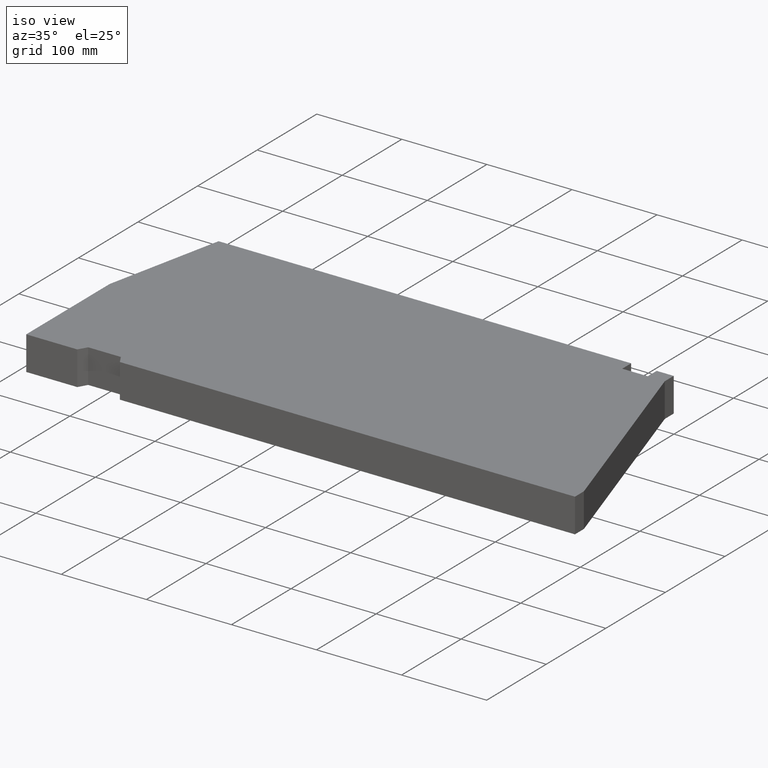
[diagram: clean part render]
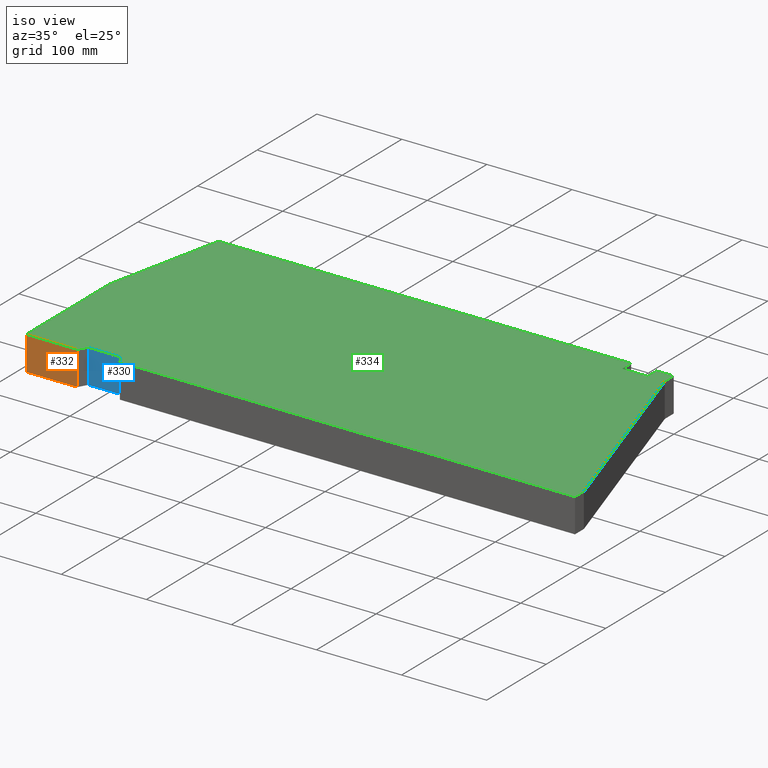
[diagram: same view with three faces highlighted in distinct colors, each labeled with its STEP entity id]
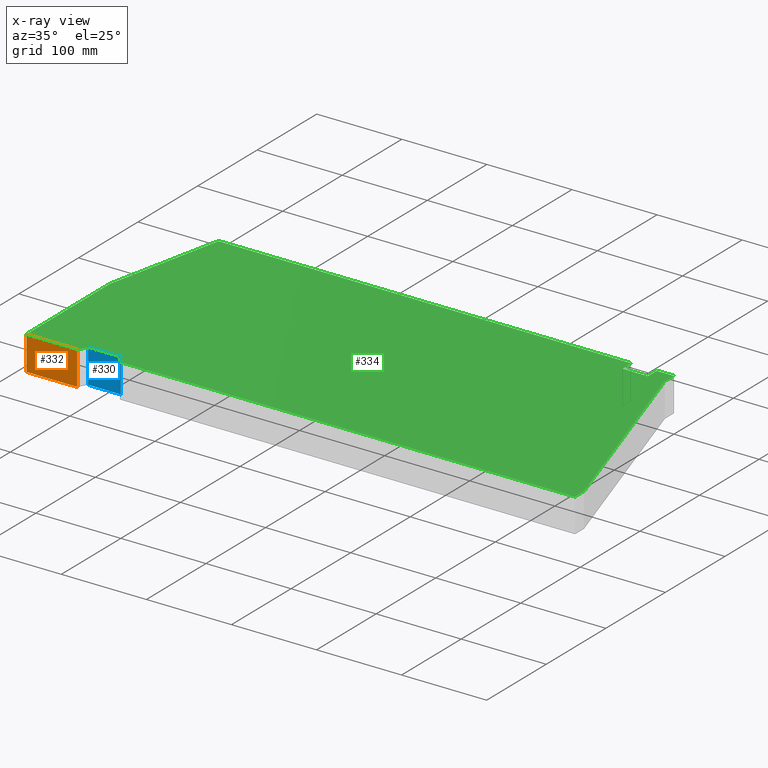
[diagram: x-ray of the same camera — body ghosted, the three highlighted faces saturated]
A machine part, iso view with three faces highlighted in distinct colors.
The next image is the same camera in x-ray (body ghosted, the three faces saturated) — at least one of them is partly hidden behind the body in this view.
Their STEP definitions:

[orange] entity #332 — the highlighted planar face has unit normal (0, -1, 0).
#26=FACE_OUTER_BOUND($,#43,.T.);
#43=EDGE_LOOP($,(#264,#265,#266,#267));
#86=LINE($,#518,#131);
#87=LINE($,#521,#132);
#88=LINE($,#523,#133);
#89=LINE($,#524,#134);
#131=VECTOR($,#423,40.);
#132=VECTOR($,#426,60.0000000000001);
#133=VECTOR($,#427,60.0000000000001);
#134=VECTOR($,#428,40.);
#163=VERTEX_POINT($,#514);
#164=VERTEX_POINT($,#516);
#165=VERTEX_POINT($,#520);
#166=VERTEX_POINT($,#522);
#206=EDGE_CURVE($,#163,#164,#86,.T.);
#207=EDGE_CURVE($,#163,#165,#87,.T.);
#208=EDGE_CURVE($,#166,#164,#88,.T.);
#209=EDGE_CURVE($,#165,#166,#89,.T.);
#264=ORIENTED_EDGE($,*,*,#207,.F.);
#265=ORIENTED_EDGE($,*,*,#206,.T.);
#266=ORIENTED_EDGE($,*,*,#208,.F.);
#267=ORIENTED_EDGE($,*,*,#209,.F.);
#315=PLANE($,#352);
#332=ADVANCED_FACE($,(#26),#315,.T.);
#352=AXIS2_PLACEMENT_3D($,#519,#424,#425);
#423=DIRECTION($,(0.,0.,1.));
#424=DIRECTION('center_axis',(0.,-1.,0.));
#425=DIRECTION('ref_axis',(1.,0.,0.));
#426=DIRECTION($,(-1.,0.,0.));
#427=DIRECTION($,(1.,0.,0.));
#428=DIRECTION($,(0.,0.,1.));
#514=CARTESIAN_POINT('',(-119.031144331396,-160.346020761246,0.));
#516=CARTESIAN_POINT('',(-119.031144331396,-160.346020761246,40.));
#518=CARTESIAN_POINT($,(-119.031144331396,-160.346020761246,0.));
#519=CARTESIAN_POINT('Origin',(-179.031144331396,-160.346020761246,0.));
#520=CARTESIAN_POINT('',(-179.031144331396,-160.346020761246,0.));
#521=CARTESIAN_POINT($,(-119.031144331396,-160.346020761246,0.));
#522=CARTESIAN_POINT('',(-179.031144331396,-160.346020761246,40.));
#523=CARTESIAN_POINT($,(-119.031144331396,-160.346020761246,40.));
#524=CARTESIAN_POINT($,(-179.031144331396,-160.346020761246,0.));

[blue] entity #330 — the highlighted planar face has unit normal (0, -1, 0).
#24=FACE_OUTER_BOUND($,#41,.T.);
#41=EDGE_LOOP($,(#256,#257,#258,#259));
#80=LINE($,#506,#125);
#81=LINE($,#509,#126);
#82=LINE($,#511,#127);
#83=LINE($,#512,#128);
#125=VECTOR($,#413,40.);
#126=VECTOR($,#416,38.4529946162075);
#127=VECTOR($,#417,38.4529946162075);
#128=VECTOR($,#418,40.);
#159=VERTEX_POINT($,#502);
#160=VERTEX_POINT($,#504);
#161=VERTEX_POINT($,#508);
#162=VERTEX_POINT($,#510);
#200=EDGE_CURVE($,#159,#160,#80,.T.);
#201=EDGE_CURVE($,#159,#161,#81,.T.);
#202=EDGE_CURVE($,#162,#160,#82,.T.);
#203=EDGE_CURVE($,#161,#162,#83,.T.);
#256=ORIENTED_EDGE($,*,*,#201,.F.);
#257=ORIENTED_EDGE($,*,*,#200,.T.);
#258=ORIENTED_EDGE($,*,*,#202,.F.);
#259=ORIENTED_EDGE($,*,*,#203,.F.);
#313=PLANE($,#350);
#330=ADVANCED_FACE($,(#24),#313,.T.);
#350=AXIS2_PLACEMENT_3D($,#507,#414,#415);
#413=DIRECTION($,(0.,0.,1.));
#414=DIRECTION('center_axis',(0.,-1.,0.));
#415=DIRECTION('ref_axis',(1.,0.,0.));
#416=DIRECTION($,(-1.,0.,0.));
#417=DIRECTION($,(1.,0.,0.));
#418=DIRECTION($,(0.,0.,1.));
#502=CARTESIAN_POINT('',(-74.8046470232926,-150.346020761246,0.));
#504=CARTESIAN_POINT('',(-74.8046470232926,-150.346020761246,40.));
#506=CARTESIAN_POINT($,(-74.8046470232926,-150.346020761246,0.));
#507=CARTESIAN_POINT('Origin',(-113.2576416395,-150.346020761246,0.));
#508=CARTESIAN_POINT('',(-113.2576416395,-150.346020761246,0.));
#509=CARTESIAN_POINT($,(-74.8046470232926,-150.346020761246,0.));
#510=CARTESIAN_POINT('',(-113.2576416395,-150.346020761246,40.));
#511=CARTESIAN_POINT($,(-74.8046470232926,-150.346020761246,40.));
#512=CARTESIAN_POINT($,(-113.2576416395,-150.346020761246,0.));

[green] entity #334 — the highlighted planar face has unit normal (0, 0, 1).
#28=FACE_OUTER_BOUND($,#45,.T.);
#45=EDGE_LOOP($,(#272,#273,#274,#275,#276,#277,#278,#279,#280,#281,#282,
#283,#284,#285,#286));
#49=LINE($,#445,#94);
#52=LINE($,#451,#97);
#55=LINE($,#457,#100);
#58=LINE($,#463,#103);
#61=LINE($,#469,#106);
#64=LINE($,#475,#109);
#67=LINE($,#481,#112);
#70=LINE($,#487,#115);
#73=LINE($,#493,#118);
#76=LINE($,#499,#121);
#79=LINE($,#505,#124);
#82=LINE($,#511,#127);
#85=LINE($,#517,#130);
#88=LINE($,#523,#133);
#91=LINE($,#527,#136);
#94=VECTOR($,#362,143.178210632764);
#97=VECTOR($,#367,485.);
#100=VECTOR($,#372,15.);
#103=VECTOR($,#377,30.);
#106=VECTOR($,#382,15.);
#109=VECTOR($,#387,20.);
#112=VECTOR($,#392,15.);
#115=VECTOR($,#397,262.488094968134);
#118=VECTOR($,#402,14.9999999999999);
#121=VECTOR($,#407,535.);
#124=VECTOR($,#412,11.5470053837925);
#127=VECTOR($,#417,38.4529946162075);
#130=VECTOR($,#422,11.5470053837925);
#133=VECTOR($,#427,60.0000000000001);
#136=VECTOR($,#432,140.);
#139=VERTEX_POINT($,#442);
#140=VERTEX_POINT($,#444);
#142=VERTEX_POINT($,#450);
#144=VERTEX_POINT($,#456);
#146=VERTEX_POINT($,#462);
#148=VERTEX_POINT($,#468);
#150=VERTEX_POINT($,#474);
#152=VERTEX_POINT($,#480);
#154=VERTEX_POINT($,#486);
#156=VERTEX_POINT($,#492);
#158=VERTEX_POINT($,#498);
#160=VERTEX_POINT($,#504);
#162=VERTEX_POINT($,#510);
#164=VERTEX_POINT($,#516);
#166=VERTEX_POINT($,#522);
#169=EDGE_CURVE($,#140,#139,#49,.T.);
#172=EDGE_CURVE($,#142,#140,#52,.T.);
#175=EDGE_CURVE($,#144,#142,#55,.T.);
#178=EDGE_CURVE($,#146,#144,#58,.T.);
#181=EDGE_CURVE($,#148,#146,#61,.T.);
#184=EDGE_CURVE($,#150,#148,#64,.T.);
#187=EDGE_CURVE($,#152,#150,#67,.T.);
#190=EDGE_CURVE($,#154,#152,#70,.T.);
#193=EDGE_CURVE($,#156,#154,#73,.T.);
#196=EDGE_CURVE($,#158,#156,#76,.T.);
#199=EDGE_CURVE($,#160,#158,#79,.T.);
#202=EDGE_CURVE($,#162,#160,#82,.T.);
#205=EDGE_CURVE($,#164,#162,#85,.T.);
#208=EDGE_CURVE($,#166,#164,#88,.T.);
#211=EDGE_CURVE($,#139,#166,#91,.T.);
#272=ORIENTED_EDGE($,*,*,#211,.T.);
#273=ORIENTED_EDGE($,*,*,#208,.T.);
#274=ORIENTED_EDGE($,*,*,#205,.T.);
#275=ORIENTED_EDGE($,*,*,#202,.T.);
#276=ORIENTED_EDGE($,*,*,#199,.T.);
#277=ORIENTED_EDGE($,*,*,#196,.T.);
#278=ORIENTED_EDGE($,*,*,#193,.T.);
#279=ORIENTED_EDGE($,*,*,#190,.T.);
#280=ORIENTED_EDGE($,*,*,#187,.T.);
#281=ORIENTED_EDGE($,*,*,#184,.T.);
#282=ORIENTED_EDGE($,*,*,#181,.T.);
#283=ORIENTED_EDGE($,*,*,#178,.T.);
#284=ORIENTED_EDGE($,*,*,#175,.T.);
#285=ORIENTED_EDGE($,*,*,#172,.T.);
#286=ORIENTED_EDGE($,*,*,#169,.T.);
#317=PLANE($,#354);
#334=ADVANCED_FACE($,(#28),#317,.T.);
#354=AXIS2_PLACEMENT_3D($,#528,#433,#434);
#362=DIRECTION($,(-0.209529088730874,-0.97780241407741,0.));
#367=DIRECTION($,(-1.,-7.32518284288763E-017,0.));
#372=DIRECTION($,(0.,1.,0.));
#377=DIRECTION($,(-1.,0.,0.));
#382=DIRECTION($,(0.,-1.,0.));
#387=DIRECTION($,(-1.,0.,0.));
#392=DIRECTION($,(0.,1.,0.));
#397=DIRECTION($,(-0.304775727103784,0.952424147199324,0.));
#402=DIRECTION($,(0.,1.,0.));
#407=DIRECTION($,(1.,2.65623452620598E-016,0.));
#412=DIRECTION($,(0.499999999999999,-0.866025403784439,0.));
#417=DIRECTION($,(1.,0.,0.));
#422=DIRECTION($,(0.500000000000001,0.866025403784438,0.));
#427=DIRECTION($,(1.,0.,0.));
#432=DIRECTION($,(-2.53765262771464E-016,-1.,0.));
#433=DIRECTION('center_axis',(0.,0.,1.));
#434=DIRECTION('ref_axis',(1.,0.,0.));
#442=CARTESIAN_POINT('',(-179.031144331396,-20.3460207612457,40.));
#444=CARTESIAN_POINT('',(-149.031144331396,119.653979238754,40.));
#445=CARTESIAN_POINT($,(-179.031144331396,-20.3460207612457,40.));
#450=CARTESIAN_POINT('',(335.968855668604,119.653979238754,40.));
#451=CARTESIAN_POINT($,(-149.031144331396,119.653979238754,40.));
#456=CARTESIAN_POINT('',(335.968855668604,104.653979238754,40.));
#457=CARTESIAN_POINT($,(335.968855668604,119.653979238754,40.));
#462=CARTESIAN_POINT('',(365.968855668604,104.653979238754,40.));
#463=CARTESIAN_POINT($,(335.968855668604,104.653979238754,40.));
#468=CARTESIAN_POINT('',(365.968855668604,119.653979238754,40.));
#469=CARTESIAN_POINT($,(365.968855668604,104.653979238754,40.));
#474=CARTESIAN_POINT('',(385.968855668604,119.653979238754,40.));
#475=CARTESIAN_POINT($,(365.968855668604,119.653979238754,40.));
#480=CARTESIAN_POINT('',(385.968855668604,104.653979238754,40.));
#481=CARTESIAN_POINT($,(385.968855668604,119.653979238754,40.));
#486=CARTESIAN_POINT('',(465.968855668604,-145.346020761246,40.));
#487=CARTESIAN_POINT($,(385.968855668604,104.653979238754,40.));
#492=CARTESIAN_POINT('',(465.968855668604,-160.346020761246,40.));
#493=CARTESIAN_POINT($,(465.968855668604,-145.346020761246,40.));
#498=CARTESIAN_POINT('',(-69.0311443313964,-160.346020761246,40.));
#499=CARTESIAN_POINT($,(465.968855668604,-160.346020761246,40.));
#504=CARTESIAN_POINT('',(-74.8046470232926,-150.346020761246,40.));
#505=CARTESIAN_POINT($,(-69.0311443313964,-160.346020761246,40.));
#510=CARTESIAN_POINT('',(-113.2576416395,-150.346020761246,40.));
#511=CARTESIAN_POINT($,(-74.8046470232926,-150.346020761246,40.));
#516=CARTESIAN_POINT('',(-119.031144331396,-160.346020761246,40.));
#517=CARTESIAN_POINT($,(-113.2576416395,-150.346020761246,40.));
#522=CARTESIAN_POINT('',(-179.031144331396,-160.346020761246,40.));
#523=CARTESIAN_POINT($,(-119.031144331396,-160.346020761246,40.));
#527=CARTESIAN_POINT($,(-179.031144331396,-160.346020761246,40.));
#528=CARTESIAN_POINT('Origin',(134.320344126187,-27.4509681436136,40.));